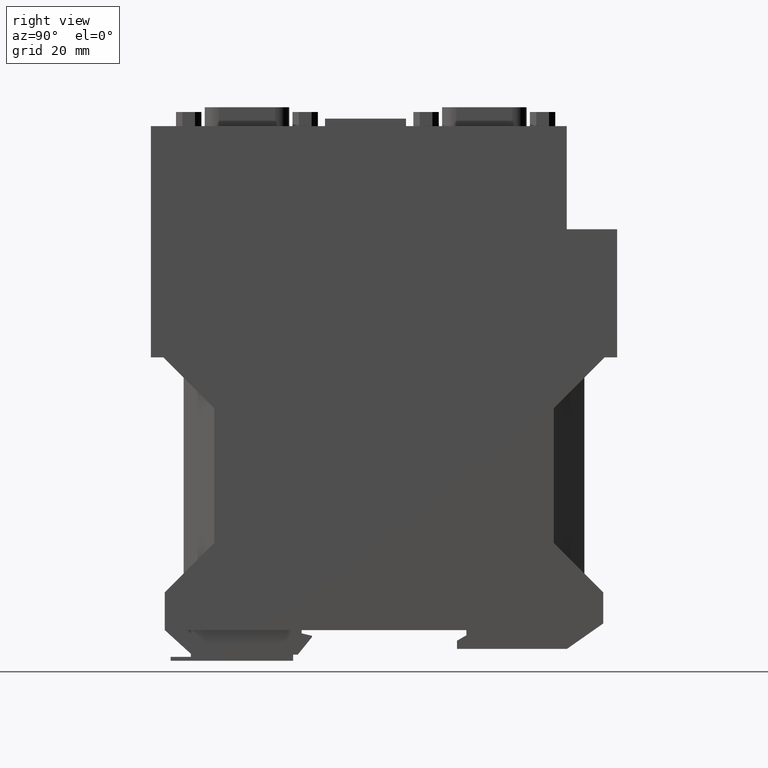
[diagram: clean part render]
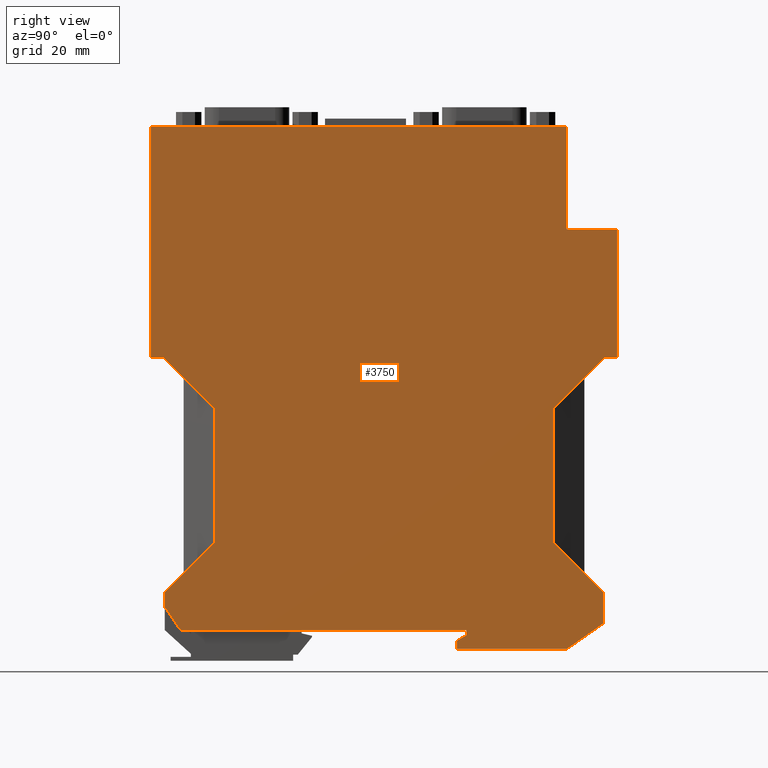
[diagram: same view with one face highlighted and labeled with its STEP entity id]
A machine part, right view. The second image highlights one B-rep face of the part: STEP entity #3750.
In plain terms, the highlighted planar face has unit normal (1, 0, 0).
Its self-contained STEP definition (entity closure, byte-faithful):
#1920=CARTESIAN_POINT('',(-57.4000000000029,25.7999999999959,22.6));
#1930=DIRECTION('',(0.,0.,1.));
#1940=DIRECTION('',(1.,0.,0.));
#1950=AXIS2_PLACEMENT_3D('',#1920,#1930,#1940);
#1960=PLANE('',#1950);
#1970=CARTESIAN_POINT('',(-77.1081632652817,24.,22.6));
#1980=DIRECTION('',(-0.564381899303651,0.825513822863314,0.));
#1990=VECTOR('',#1980,1.);
#2000=LINE('',#1970,#1990);
#2010=CARTESIAN_POINT('',(-60.7000000000009,5.04485342389671E-13,22.6));
#2020=VERTEX_POINT('',#2010);
#2030=CARTESIAN_POINT('',(-64.0500000000063,4.90000000001588,22.6));
#2040=VERTEX_POINT('',#2030);
#2050=EDGE_CURVE('',#2020,#2040,#2000,.T.);
#2060=ORIENTED_EDGE('',*,*,#2050,.F.);
#2070=CARTESIAN_POINT('',(-64.0500000000063,24.,22.6));
#2080=DIRECTION('',(0.,1.,0.));
#2090=VECTOR('',#2080,1.);
#2100=LINE('',#2070,#2090);
#2110=CARTESIAN_POINT('',(-64.0500000000063,7.99999999999596,22.6));
#2120=VERTEX_POINT('',#2110);
#2130=EDGE_CURVE('',#2040,#2120,#2100,.T.);
#2140=ORIENTED_EDGE('',*,*,#2130,.F.);
#2150=CARTESIAN_POINT('',(24.,96.049999999986,22.6));
#2160=DIRECTION('',(0.707106781186613,0.707106781186482,0.));
#2170=VECTOR('',#2160,1.);
#2180=LINE('',#2150,#2170);
#2190=CARTESIAN_POINT('',(-53.5500000000014,18.4999999999989,22.6));
#2200=VERTEX_POINT('',#2190);
#2210=EDGE_CURVE('',#2120,#2200,#2180,.T.);
#2220=ORIENTED_EDGE('',*,*,#2210,.F.);
#2230=CARTESIAN_POINT('',(-53.5500000000014,24.,22.6));
#2240=DIRECTION('',(0.,-1.,0.));
#2250=VECTOR('',#2240,1.);
#2260=LINE('',#2230,#2250);
#2270=CARTESIAN_POINT('',(-53.5500000000014,47.1000000000007,22.6));
#2280=VERTEX_POINT('',#2270);
#2290=EDGE_CURVE('',#2280,#2200,#2260,.T.);
#2300=ORIENTED_EDGE('',*,*,#2290,.T.);
#2310=CARTESIAN_POINT('',(24.,-30.45,22.6));
#2320=DIRECTION('',(-0.707106781186551,0.707106781186544,0.));
#2330=VECTOR('',#2320,1.);
#2340=LINE('',#2310,#2330);
#2350=CARTESIAN_POINT('',(-64.3500000000018,57.900000000001,22.6));
#2360=VERTEX_POINT('',#2350);
#2370=EDGE_CURVE('',#2280,#2360,#2340,.T.);
#2380=ORIENTED_EDGE('',*,*,#2370,.F.);
#2390=CARTESIAN_POINT('',(24.,57.8999999999923,22.6));
#2400=DIRECTION('',(-1.,9.89E-14,0.));
#2410=VECTOR('',#2400,1.);
#2420=LINE('',#2390,#2410);
#2430=CARTESIAN_POINT('',(-66.9999999999093,57.9000000000013,22.6));
#2440=VERTEX_POINT('',#2430);
#2450=EDGE_CURVE('',#2360,#2440,#2420,.T.);
#2460=ORIENTED_EDGE('',*,*,#2450,.F.);
#2470=CARTESIAN_POINT('',(-66.9999999999093,24.,22.6));
#2480=DIRECTION('',(0.,1.,0.));
#2490=VECTOR('',#2480,1.);
#2500=LINE('',#2470,#2490);
#2510=CARTESIAN_POINT('',(-66.9999999999093,107.000000000009,22.6));
#2520=VERTEX_POINT('',#2510);
#2530=EDGE_CURVE('',#2440,#2520,#2500,.T.);
#2540=ORIENTED_EDGE('',*,*,#2530,.F.);
#2550=CARTESIAN_POINT('',(24.,106.999999999941,22.6));
#2560=DIRECTION('',(-1.,7.38964445188328E-13,0.));
#2570=VECTOR('',#2560,1.);
#2580=LINE('',#2550,#2570);
#2590=CARTESIAN_POINT('',(21.2999999999832,106.999999999943,22.6));
#2600=VERTEX_POINT('',#2590);
#2610=EDGE_CURVE('',#2600,#2520,#2580,.T.);
#2620=ORIENTED_EDGE('',*,*,#2610,.T.);
#2630=CARTESIAN_POINT('',(21.3000000000036,24.,22.6));
#2640=DIRECTION('',(2.17588503380295E-24,-1.,-0.));
#2650=VECTOR('',#2640,1.);
#2660=LINE('',#2630,#2650);
#2670=CARTESIAN_POINT('',(21.2999999999832,85.1000000000079,22.6));
#2680=VERTEX_POINT('',#2670);
#2690=EDGE_CURVE('',#2600,#2680,#2660,.T.);
#2700=ORIENTED_EDGE('',*,*,#2690,.F.);
#2710=CARTESIAN_POINT('',(24.,85.1000000000079,22.6));
#2720=DIRECTION('',(-1.,-2.17588503379895E-24,0.));
#2730=VECTOR('',#2720,1.);
#2740=LINE('',#2710,#2730);
#2750=CARTESIAN_POINT('',(31.9999999999779,85.1000000000079,22.6));
#2760=VERTEX_POINT('',#2750);
#2770=EDGE_CURVE('',#2760,#2680,#2740,.T.);
#2780=ORIENTED_EDGE('',*,*,#2770,.T.);
#2790=CARTESIAN_POINT('',(32.0000000000223,24.,22.6));
#2800=DIRECTION('',(-7.27300000002176E-13,1.,0.));
#2810=VECTOR('',#2800,1.);
#2820=LINE('',#2790,#2810);
#2830=CARTESIAN_POINT('',(31.9999999999977,57.9000000000013,22.6));
#2840=VERTEX_POINT('',#2830);
#2850=EDGE_CURVE('',#2840,#2760,#2820,.T.);
#2860=ORIENTED_EDGE('',*,*,#2850,.T.);
#2870=CARTESIAN_POINT('',(24.,57.9000000000005,22.6));
#2880=DIRECTION('',(1.,9.89E-14,0.));
#2890=VECTOR('',#2880,1.);
#2900=LINE('',#2870,#2890);
#2910=CARTESIAN_POINT('',(29.3500000000902,57.900000000001,22.6));
#2920=VERTEX_POINT('',#2910);
#2930=EDGE_CURVE('',#2920,#2840,#2900,.T.);
#2940=ORIENTED_EDGE('',*,*,#2930,.T.);
#2950=CARTESIAN_POINT('',(24.,52.5499999999109,22.6));
#2960=DIRECTION('',(0.707106781186551,0.707106781186544,0.));
#2970=VECTOR('',#2960,1.);
#2980=LINE('',#2950,#2970);
#2990=CARTESIAN_POINT('',(18.5499999999986,47.0999999999095,22.6));
#3000=VERTEX_POINT('',#2990);
#3010=EDGE_CURVE('',#3000,#2920,#2980,.T.);
#3020=ORIENTED_EDGE('',*,*,#3010,.T.);
#3030=CARTESIAN_POINT('',(18.5499999999986,24.,22.6));
#3040=DIRECTION('',(0.,1.,0.));
#3050=VECTOR('',#3040,1.);
#3060=LINE('',#3030,#3050);
#3070=CARTESIAN_POINT('',(18.5499999999986,18.5000000000902,22.6));
#3080=VERTEX_POINT('',#3070);
#3090=EDGE_CURVE('',#3080,#3000,#3060,.T.);
#3100=ORIENTED_EDGE('',*,*,#3090,.T.);
#3110=CARTESIAN_POINT('',(24.,13.0500000000897,22.6));
#3120=DIRECTION('',(-0.707106781186613,0.707106781186482,0.));
#3130=VECTOR('',#3120,1.);
#3140=LINE('',#3110,#3130);
#3150=CARTESIAN_POINT('',(29.0500000000947,7.99999999999599,22.6));
#3160=VERTEX_POINT('',#3150);
#3170=EDGE_CURVE('',#3160,#3080,#3140,.T.);
#3180=ORIENTED_EDGE('',*,*,#3170,.T.);
#3190=CARTESIAN_POINT('',(29.0500000000947,24.,22.6));
#3200=DIRECTION('',(0.,1.,0.));
#3210=VECTOR('',#3200,1.);
#3220=LINE('',#3190,#3210);
#3230=CARTESIAN_POINT('',(29.0500000000947,1.40000000001705,22.6));
#3240=VERTEX_POINT('',#3230);
#3250=EDGE_CURVE('',#3240,#3160,#3220,.T.);
#3260=ORIENTED_EDGE('',*,*,#3250,.T.);
#3270=CARTESIAN_POINT('',(24.,-2.13604806800835,22.6));
#3280=DIRECTION('',(-0.819152044288986,-0.573576436351054,0.));
#3290=VECTOR('',#3280,1.);
#3300=LINE('',#3270,#3290);
#3310=CARTESIAN_POINT('',(21.338000763663,-4.00000000000013,22.6));
#3320=VERTEX_POINT('',#3310);
#3330=EDGE_CURVE('',#3240,#3320,#3300,.T.);
#3340=ORIENTED_EDGE('',*,*,#3330,.F.);
#3350=CARTESIAN_POINT('',(24.,-4.00000000000009,22.6));
#3360=DIRECTION('',(1.,4.80965890943096E-26,0.));
#3370=VECTOR('',#3360,1.);
#3380=LINE('',#3350,#3370);
#3390=CARTESIAN_POINT('',(-2.00000000000178,-4.00000000000013,22.6));
#3400=VERTEX_POINT('',#3390);
#3410=EDGE_CURVE('',#3400,#3320,#3380,.T.);
#3420=ORIENTED_EDGE('',*,*,#3410,.T.);
#3430=CARTESIAN_POINT('',(-2.00000000000178,24.,22.6));
#3440=DIRECTION('',(0.,1.,0.));
#3450=VECTOR('',#3440,1.);
#3460=LINE('',#3430,#3450);
#3470=CARTESIAN_POINT('',(-2.00000000000178,-2.25459663117339,22.6));
#3480=VERTEX_POINT('',#3470);
#3490=EDGE_CURVE('',#3400,#3480,#3460,.T.);
#3500=ORIENTED_EDGE('',*,*,#3490,.F.);
#3510=CARTESIAN_POINT('',(24.,12.7565103677565,22.6));
#3520=DIRECTION('',(-0.86602540378446,-0.499999999999964,0.));
#3530=VECTOR('',#3520,1.);
#3540=LINE('',#3510,#3530);
#3550=CARTESIAN_POINT('',(-1.76925141204265E-12,-1.09989609279425,22.6))
;
#3560=VERTEX_POINT('',#3550);
#3570=EDGE_CURVE('',#3560,#3480,#3540,.T.);
#3580=ORIENTED_EDGE('',*,*,#3570,.T.);
#3590=CARTESIAN_POINT('',(-1.77990955307905E-12,24.,22.6));
#3600=DIRECTION('',(4.E-16,-1.,-0.));
#3610=VECTOR('',#3600,1.);
#3620=LINE('',#3590,#3610);
#3630=CARTESIAN_POINT('',(-1.76925141204265E-12,-3.69482222595252E-13,
22.6));
#3640=VERTEX_POINT('',#3630);
#3650=EDGE_CURVE('',#3640,#3560,#3620,.T.);
#3660=ORIENTED_EDGE('',*,*,#3650,.T.);
#3670=CARTESIAN_POINT('',(24.,-7.14095449438901E-13,22.6));
#3680=DIRECTION('',(1.,-1.44E-14,-0.));
#3690=VECTOR('',#3680,1.);
#3700=LINE('',#3670,#3690);
#3710=EDGE_CURVE('',#2020,#3640,#3700,.T.);
#3720=ORIENTED_EDGE('',*,*,#3710,.T.);
#3730=EDGE_LOOP('',(#3720,#3660,#3580,#3500,#3420,#3340,#3260,#3180,
#3100,#3020,#2940,#2860,#2780,#2700,#2620,#2540,#2460,#2380,#2300,#2220,
#2140,#2060));
#3740=FACE_OUTER_BOUND('',#3730,.T.);
#3750=ADVANCED_FACE('',(#3740),#1960,.T.);